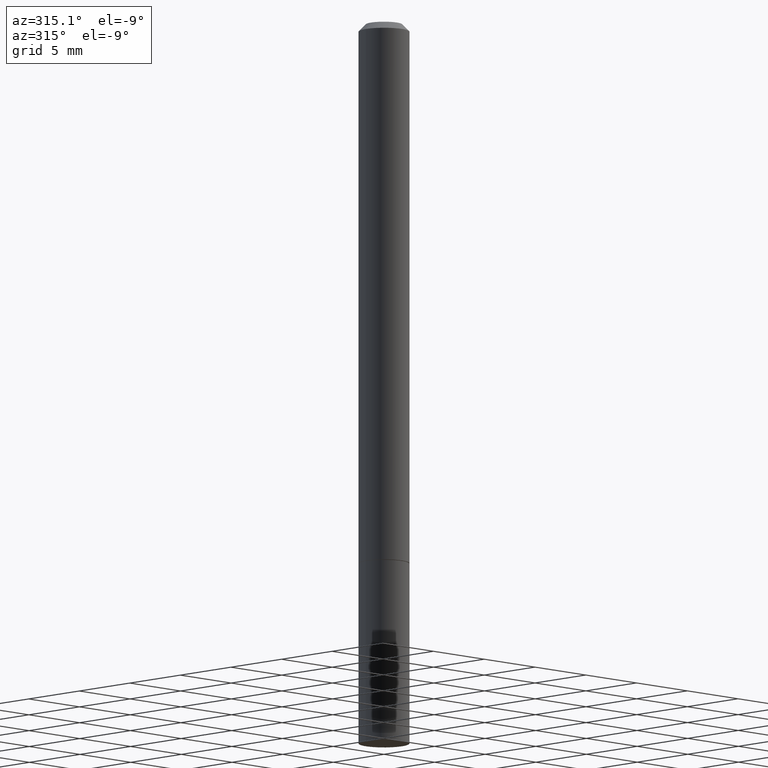
[diagram: clean part render]
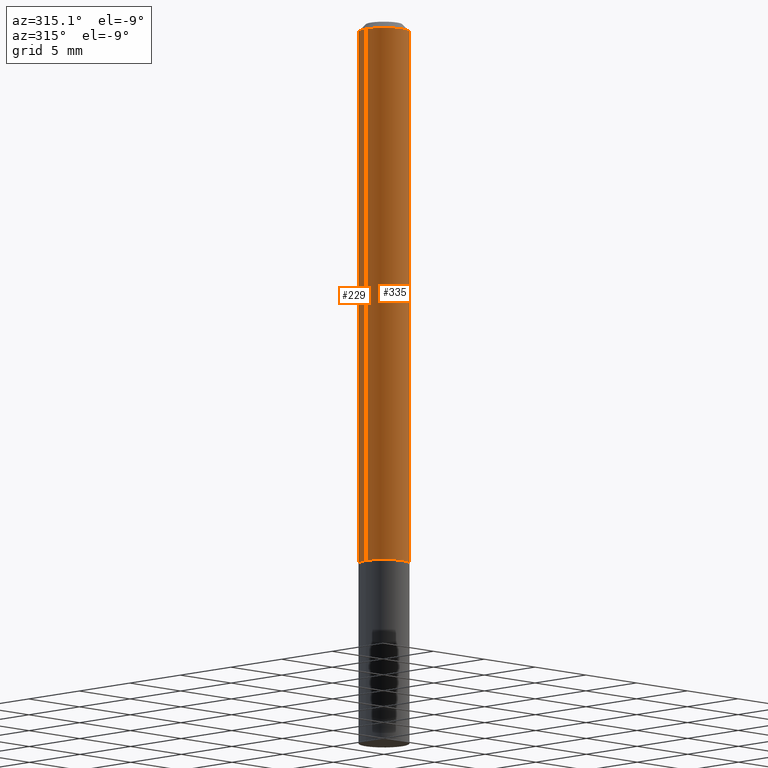
[diagram: same view with one multi-face feature highlighted, each face labeled with its STEP entity id]
A machine part, auxiliary view. The highlighted faces form ONE feature: a constant-radius fillet chain: 2 tangent blend faces with common blend radius 1.7856 mm. The faces share edges in the B-rep.
Their STEP definitions:
[1] entity #229 (Cylinder):
#4 = AXIS2_PLACEMENT_3D ( 'NONE', #92, #232, #331 ) ;
#47 = CIRCLE ( 'NONE', #4, 0.07030000000000000138 ) ;
#78 = EDGE_LOOP ( 'NONE', ( #227, #266, #284, #142 ) ) ;
#87 = DIRECTION ( 'NONE',  ( -2.445468806185136597E-29, 3.491481338843145583E-15, 1.000000000000000000 ) ) ;
#92 = CARTESIAN_POINT ( 'NONE',  ( 3.665757740471519853E-29, -5.233730526925875958E-15, -1.499000000000000110 ) ) ;
#101 = DIRECTION ( 'NONE',  ( -2.445468806185136877E-29, 3.491481338843145188E-15, 1.000000000000000000 ) ) ;
#117 = LINE ( 'NONE', #234, #330 ) ;
#120 = CARTESIAN_POINT ( 'NONE',  ( 4.890937612370283668E-31, -6.982962677686305168E-17, -0.02000000000000004205 ) ) ;
#123 = CARTESIAN_POINT ( 'NONE',  ( -0.07029999999999980709, 4.210726494644801207E-16, -0.02000000000000004205 ) ) ;
#125 = VECTOR ( 'NONE', #101, 39.37007874015748143 ) ;
#130 = LINE ( 'NONE', #378, #125 ) ;
#133 = VERTEX_POINT ( 'NONE', #166 ) ;
#142 = ORIENTED_EDGE ( 'NONE', *, *, #158, .F. ) ;
#158 = EDGE_CURVE ( 'NONE', #133, #226, #130, .T. ) ;
#166 = CARTESIAN_POINT ( 'NONE',  ( 0.07030000000000000138, -5.724632803167220117E-15, -1.499000000000000110 ) ) ;
#175 = DIRECTION ( 'NONE',  ( -2.445468806185136877E-29, 3.491481338843145188E-15, 1.000000000000000000 ) ) ;
#176 = CIRCLE ( 'NONE', #338, 0.07029999999999980709 ) ;
#181 = AXIS2_PLACEMENT_3D ( 'NONE', #327, #87, #351 ) ;
#206 = CYLINDRICAL_SURFACE ( 'NONE', #181, 0.07029999999999990423 ) ;
#226 = VERTEX_POINT ( 'NONE', #303 ) ;
#227 = ORIENTED_EDGE ( 'NONE', *, *, #321, .T. ) ;
#229 = ADVANCED_FACE ( 'NONE', ( #389 ), #206, .T. ) ;
#232 = DIRECTION ( 'NONE',  ( -2.445468806185136597E-29, 3.491481338843145583E-15, 1.000000000000000000 ) ) ;
#234 = CARTESIAN_POINT ( 'NONE',  ( -0.07029999999999990423, 4.995115432393497502E-16, -3.458011368449193965E-30 ) ) ;
#266 = ORIENTED_EDGE ( 'NONE', *, *, #285, .T. ) ;
#284 = ORIENTED_EDGE ( 'NONE', *, *, #311, .F. ) ;
#285 = EDGE_CURVE ( 'NONE', #379, #345, #117, .T. ) ;
#303 = CARTESIAN_POINT ( 'NONE',  ( 0.07029999999999980709, -5.521226360202004844E-16, -0.02000000000000004205 ) ) ;
#311 = EDGE_CURVE ( 'NONE', #226, #345, #176, .T. ) ;
#321 = EDGE_CURVE ( 'NONE', #133, #379, #47, .T. ) ;
#327 = CARTESIAN_POINT ( 'NONE',  ( 0.000000000000000000, 0.000000000000000000, 0.000000000000000000 ) ) ;
#330 = VECTOR ( 'NONE', #175, 39.37007874015748143 ) ;
#331 = DIRECTION ( 'NONE',  ( 1.000000000000000000, -6.982962677686265133E-15, 0.000000000000000000 ) ) ;
#336 = CARTESIAN_POINT ( 'NONE',  ( -0.07030000000000000138, -2.152268533612015835E-15, -1.499000000000000110 ) ) ;
#338 = AXIS2_PLACEMENT_3D ( 'NONE', #120, #358, #386 ) ;
#345 = VERTEX_POINT ( 'NONE', #123 ) ;
#351 = DIRECTION ( 'NONE',  ( 1.000000000000000000, -6.982962677686266711E-15, 4.876176775795935793E-29 ) ) ;
#358 = DIRECTION ( 'NONE',  ( -2.445468806185136597E-29, 3.491481338843145583E-15, 1.000000000000000000 ) ) ;
#378 = CARTESIAN_POINT ( 'NONE',  ( 0.07029999999999990423, -4.909022762413438627E-16, 3.427952273384538232E-30 ) ) ;
#379 = VERTEX_POINT ( 'NONE', #336 ) ;
#386 = DIRECTION ( 'NONE',  ( 1.000000000000000000, -6.982962677686267499E-15, 0.000000000000000000 ) ) ;
#389 = FACE_OUTER_BOUND ( 'NONE', #78, .T. ) ;
[2] entity #335 (Cylinder):
#8 = DIRECTION ( 'NONE',  ( 1.000000000000000000, -6.982962677686266711E-15, 4.876176775795935793E-29 ) ) ;
#20 = ORIENTED_EDGE ( 'NONE', *, *, #383, .F. ) ;
#21 = EDGE_LOOP ( 'NONE', ( #353, #294, #231, #20 ) ) ;
#33 = DIRECTION ( 'NONE',  ( -2.445468806185136597E-29, 3.491481338843145583E-15, 1.000000000000000000 ) ) ;
#38 = AXIS2_PLACEMENT_3D ( 'NONE', #274, #66, #238 ) ;
#66 = DIRECTION ( 'NONE',  ( -2.445468806185136597E-29, 3.491481338843145583E-15, 1.000000000000000000 ) ) ;
#82 = EDGE_CURVE ( 'NONE', #379, #133, #90, .T. ) ;
#90 = CIRCLE ( 'NONE', #124, 0.07030000000000000138 ) ;
#101 = DIRECTION ( 'NONE',  ( -2.445468806185136877E-29, 3.491481338843145188E-15, 1.000000000000000000 ) ) ;
#117 = LINE ( 'NONE', #234, #330 ) ;
#122 = CYLINDRICAL_SURFACE ( 'NONE', #367, 0.07029999999999990423 ) ;
#123 = CARTESIAN_POINT ( 'NONE',  ( -0.07029999999999980709, 4.210726494644801207E-16, -0.02000000000000004205 ) ) ;
#124 = AXIS2_PLACEMENT_3D ( 'NONE', #255, #246, #299 ) ;
#125 = VECTOR ( 'NONE', #101, 39.37007874015748143 ) ;
#129 = FACE_OUTER_BOUND ( 'NONE', #21, .T. ) ;
#130 = LINE ( 'NONE', #378, #125 ) ;
#133 = VERTEX_POINT ( 'NONE', #166 ) ;
#158 = EDGE_CURVE ( 'NONE', #133, #226, #130, .T. ) ;
#166 = CARTESIAN_POINT ( 'NONE',  ( 0.07030000000000000138, -5.724632803167220117E-15, -1.499000000000000110 ) ) ;
#175 = DIRECTION ( 'NONE',  ( -2.445468806185136877E-29, 3.491481338843145188E-15, 1.000000000000000000 ) ) ;
#185 = CARTESIAN_POINT ( 'NONE',  ( 0.000000000000000000, 0.000000000000000000, 0.000000000000000000 ) ) ;
#226 = VERTEX_POINT ( 'NONE', #303 ) ;
#231 = ORIENTED_EDGE ( 'NONE', *, *, #158, .T. ) ;
#234 = CARTESIAN_POINT ( 'NONE',  ( -0.07029999999999990423, 4.995115432393497502E-16, -3.458011368449193965E-30 ) ) ;
#238 = DIRECTION ( 'NONE',  ( 1.000000000000000000, -6.982962677686267499E-15, 0.000000000000000000 ) ) ;
#246 = DIRECTION ( 'NONE',  ( -2.445468806185136597E-29, 3.491481338843145583E-15, 1.000000000000000000 ) ) ;
#255 = CARTESIAN_POINT ( 'NONE',  ( 3.665757740471519853E-29, -5.233730526925875958E-15, -1.499000000000000110 ) ) ;
#274 = CARTESIAN_POINT ( 'NONE',  ( 4.890937612370283668E-31, -6.982962677686305168E-17, -0.02000000000000004205 ) ) ;
#278 = CIRCLE ( 'NONE', #38, 0.07029999999999980709 ) ;
#285 = EDGE_CURVE ( 'NONE', #379, #345, #117, .T. ) ;
#294 = ORIENTED_EDGE ( 'NONE', *, *, #82, .T. ) ;
#299 = DIRECTION ( 'NONE',  ( 1.000000000000000000, -6.982962677686265133E-15, 0.000000000000000000 ) ) ;
#303 = CARTESIAN_POINT ( 'NONE',  ( 0.07029999999999980709, -5.521226360202004844E-16, -0.02000000000000004205 ) ) ;
#330 = VECTOR ( 'NONE', #175, 39.37007874015748143 ) ;
#335 = ADVANCED_FACE ( 'NONE', ( #129 ), #122, .T. ) ;
#336 = CARTESIAN_POINT ( 'NONE',  ( -0.07030000000000000138, -2.152268533612015835E-15, -1.499000000000000110 ) ) ;
#345 = VERTEX_POINT ( 'NONE', #123 ) ;
#353 = ORIENTED_EDGE ( 'NONE', *, *, #285, .F. ) ;
#367 = AXIS2_PLACEMENT_3D ( 'NONE', #185, #33, #8 ) ;
#378 = CARTESIAN_POINT ( 'NONE',  ( 0.07029999999999990423, -4.909022762413438627E-16, 3.427952273384538232E-30 ) ) ;
#379 = VERTEX_POINT ( 'NONE', #336 ) ;
#383 = EDGE_CURVE ( 'NONE', #345, #226, #278, .T. ) ;